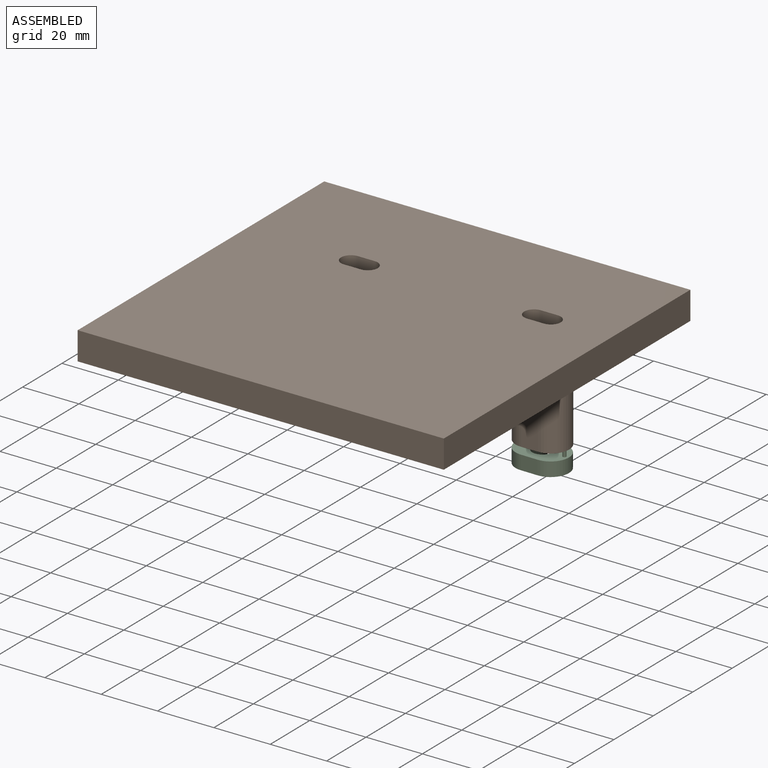
[diagram: assembled view]
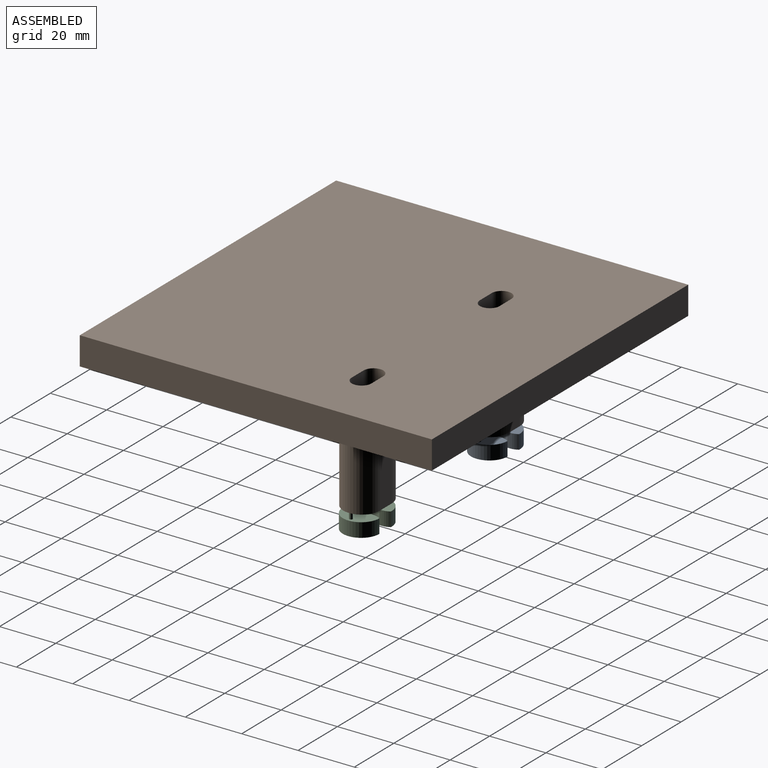
[diagram: assembled view, second angle]
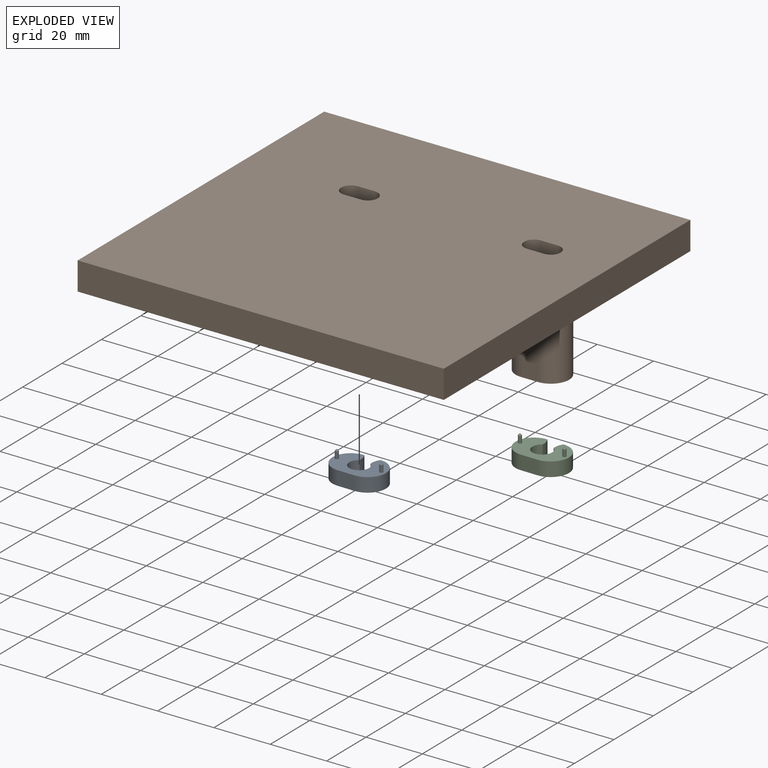
[diagram: exploded view]
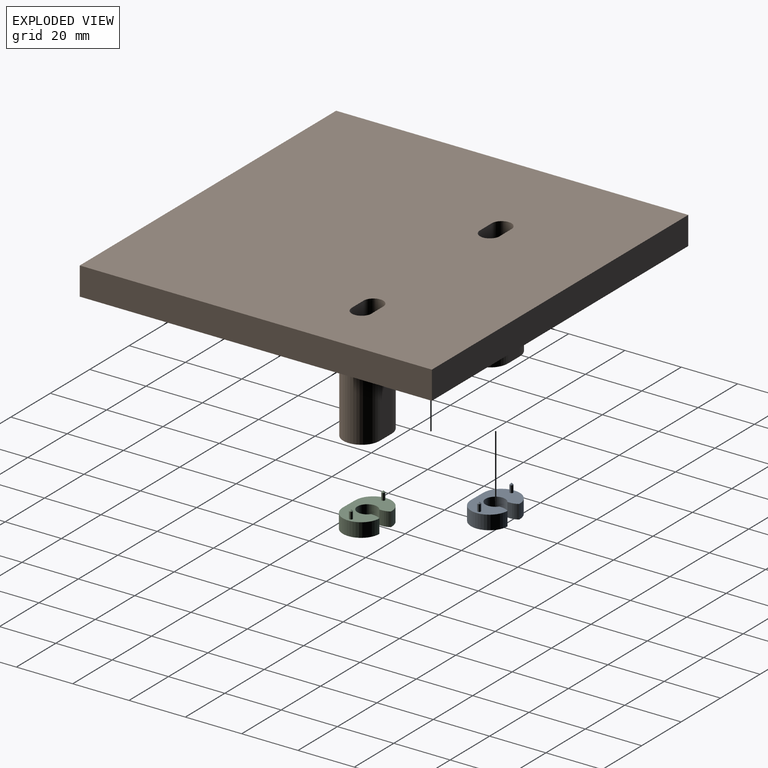
[diagram: exploded view, second angle]
ASSEMBLY  parts=3 mates=2
PART A: 16 faces, bbox 19x13.1x8 mm
  f0: cylinder r=6.5mm len=13mm, axis (0,0,-1), area 103.5mm2, adj f1,f6,f7,f15
  f1: plane 5.92x5mm, normal (-0.01,-1,0), area 29.6mm2, adj f0,f2,f6,f7
  f2: cylinder r=6.5mm len=13mm, axis (0,0,-1), area 102.1mm2, adj f1,f6,f7,f14
  f3: plane 5x0.65mm, normal (-1,0,0), area 3.3mm2, adj f4,f6,f7,f14
  f4: cylinder r=3.5mm len=7mm, axis (0,0,-1), area 88.7mm2, adj f3,f5,f6,f7
  f5: plane 5x0.89mm, normal (1,0,0), area 4.5mm2, adj f4,f6,f7,f15
  f6: plane 19x13.08mm, normal (0,0,1), area 155.5mm2, adj f0,f1,f2,f3,f4,f5,f8,f10
  f7: plane 19x13.08mm, normal (0,0,-1), area 157.8mm2, adj f0,f1,f2,f3,f4,f5,f14,f15
  f8: cylinder r=0.6mm len=2.5mm, axis (0,0,-1), area 9.4mm2, adj f6,f13
  f9: plane 0.2x0.2mm, normal (0,0,1), area 0mm2, adj f13
  f10: cylinder r=0.6mm len=2.5mm, axis (0,0,-1), area 9.4mm2, adj f6,f12
  f11: plane 0.2x0.2mm, normal (0,0,1), area 0mm2, adj f12
  f12: cone r=0.1mm half-angle=45deg, axis (0,0,-1), area 1.6mm2, adj f10,f11
  f13: cone r=0.1mm half-angle=45deg, axis (0,0,-1), area 1.6mm2, adj f8,f9
  f14: cylinder r=5mm len=5mm, axis (0,0,-1), area 16.1mm2, adj f2,f3,f6,f7
  f15: cylinder r=5mm len=5mm, axis (0,0,-1), area 14.3mm2, adj f0,f5,f6,f7
PART B: 32 faces, bbox 130x125x40 mm
  f0: cylinder r=3.5mm len=40mm, axis (0,0,-1), area 439.8mm2, adj f1,f3,f4,f13
  f1: plane 40x6mm, normal (0,-1,0), area 240mm2, adj f0,f2,f4,f13
  f2: cylinder r=3.5mm len=40mm, axis (0,0,-1), area 439.8mm2, adj f1,f3,f4,f13
  f3: plane 40x6mm, normal (0,1,0), area 240mm2, adj f0,f2,f4,f13
  f4: plane 130x125mm, normal (0,0,1), area 16089mm2, adj f0,f1,f2,f3,f6,f7,f8,f18
  f5: plane 130x125mm, normal (0,0,-1), area 15828.5mm2, adj f6,f7,f8,f9,f10,f11,f12,f22
  f6: plane 130x10mm, normal (0,1,0), area 1300mm2, adj f4,f5,f7,f22
  f7: plane 125x10mm, normal (-1,0,0), area 1250mm2, adj f4,f5,f6,f8
  f8: plane 130x10mm, normal (0,-1,0), area 1300mm2, adj f4,f5,f7,f22
  f9: plane 30x6mm, normal (0,-1,0), area 180mm2, adj f5,f10,f12,f13
  f10: cylinder r=6.5mm len=30mm, axis (0,0,1), area 612.6mm2, adj f5,f9,f11,f13
  f11: plane 30x6mm, normal (0,1,0), area 180mm2, adj f5,f10,f12,f13
  f12: cylinder r=6.5mm len=30mm, axis (0,0,1), area 612.6mm2, adj f5,f9,f11,f13
  f13: plane 19x13mm, normal (0,0,-1), area 126.7mm2, adj f0,f1,f2,f3,f9,f10,f11,f12
  f14: cone r=0mm half-angle=59deg, axis (0,0,-1), area 2.1mm2, adj f15
  f15: cylinder r=0.75mm len=5mm, axis (0,0,-1), area 23.6mm2, adj f13,f14
  f16: cone r=0mm half-angle=59deg, axis (0,0,-1), area 2.1mm2, adj f17
  f17: cylinder r=0.75mm len=5mm, axis (0,0,-1), area 23.6mm2, adj f13,f16
  f18: cylinder r=3.5mm len=40mm, axis (0,0,-1), area 439.8mm2, adj f4,f19,f21,f27
  f19: plane 40x6mm, normal (0,-1,0), area 240mm2, adj f4,f18,f20,f27
  f20: cylinder r=3.5mm len=40mm, axis (0,0,-1), area 439.8mm2, adj f4,f19,f21,f27
  f21: plane 40x6mm, normal (0,1,0), area 240mm2, adj f4,f18,f20,f27
  f22: plane 125x10mm, normal (1,0,0), area 1250mm2, adj f4,f5,f6,f8
  f23: plane 30x6mm, normal (0,-1,0), area 180mm2, adj f5,f24,f26,f27
  f24: cylinder r=6.5mm len=30mm, axis (0,0,1), area 612.6mm2, adj f5,f23,f25,f27
  f25: plane 30x6mm, normal (0,1,0), area 180mm2, adj f5,f24,f26,f27
  f26: cylinder r=6.5mm len=30mm, axis (0,0,1), area 612.6mm2, adj f5,f23,f25,f27
  f27: plane 19x13mm, normal (0,0,-1), area 126.7mm2, adj f18,f19,f20,f21,f23,f24,f25,f26
  f28: cone r=0mm half-angle=59deg, axis (0,0,-1), area 2.1mm2, adj f29
  f29: cylinder r=0.75mm len=5mm, axis (0,0,-1), area 23.6mm2, adj f27,f28
  f30: cone r=0mm half-angle=59deg, axis (0,0,-1), area 2.1mm2, adj f31
  f31: cylinder r=0.75mm len=5mm, axis (0,0,-1), area 23.6mm2, adj f27,f30
PART C: same geometry as A
PLACE A t=(-32.86,47.82,-46.15)mm
PLACE B t=(-27.39,22.65,-8.65)mm
PLACE C t=(32.14,47.82,-46.15)mm
MATE fastened B.f30 <-> C.f8  axis (0,0,-1) through (37.6,38.59,-38.65)mm
MATE fastened B.f16 <-> A.f8  axis (0,0,-1) through (-27.4,38.59,-38.65)mm
